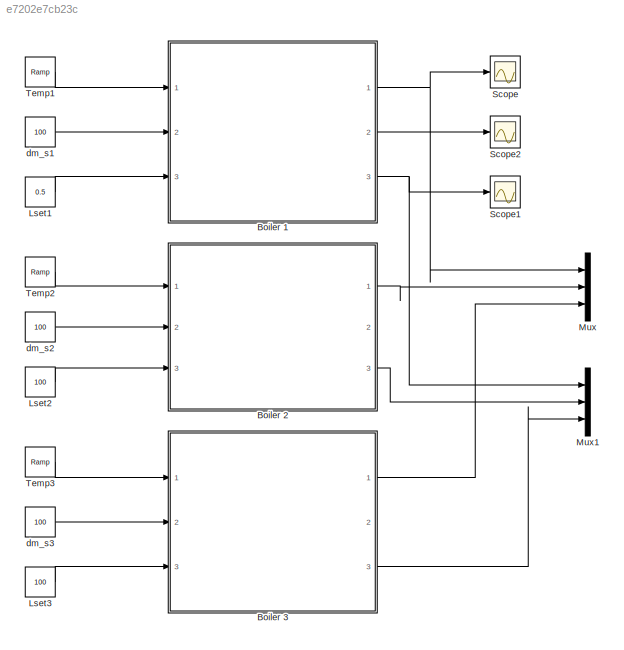
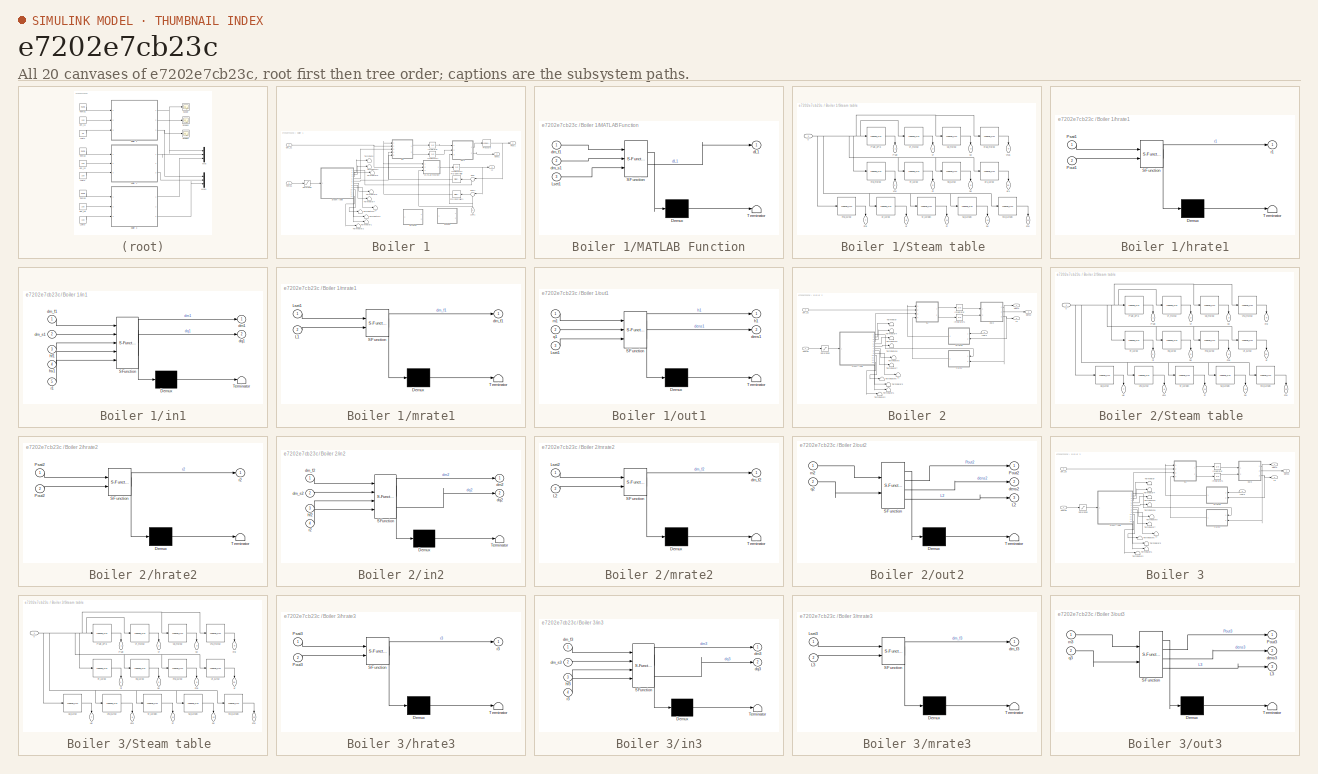
[diagram: thumbnail index - all 20 canvases of the model, root first then tree order]
MODEL slx_e7202e7cb23c
KIND model
CONFIG AbsTol = auto
CONFIG EnableMultiTasking = off
CONFIG FixedStep = 0.01
CONFIG MaxStep = auto
CONFIG MinStep = auto
CONFIG RelTol = 1e-3
CONFIG SampleTimeConstraint = Unconstrained
CONFIG SolverName = ode1
CONFIG StartTime = 0.0
CONFIG StopTime = 75
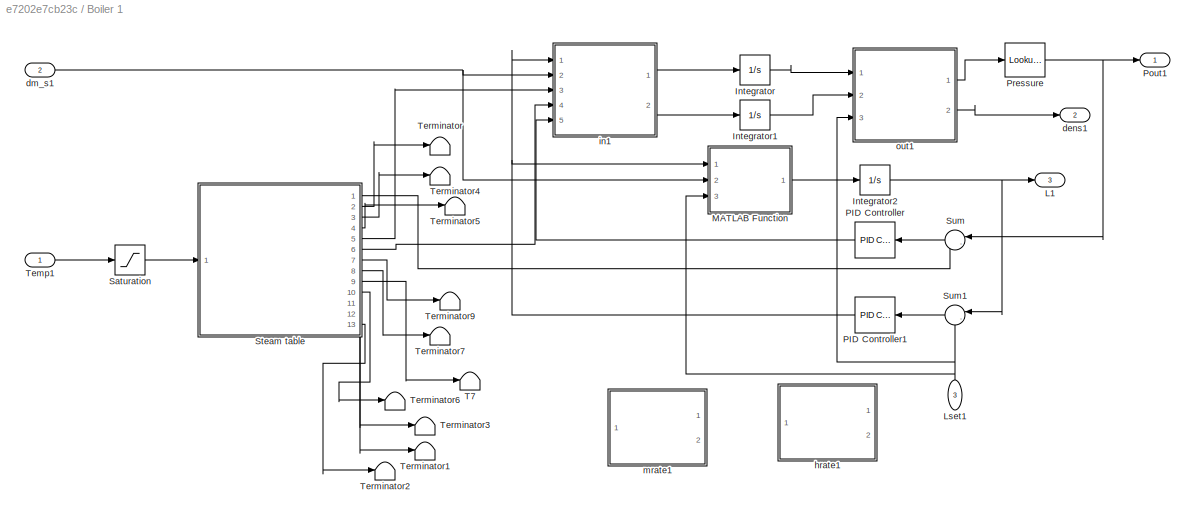
BLOCK [SubSystem] Boiler 1
  Ports = [3, 3]
  RequestExecContextInheritance = off
BLOCK [Integrator] Boiler 1/Integrator
  Ports = [1, 1]
BLOCK [Integrator] Boiler 1/Integrator1
  InitialCondition = 1
  Ports = [1, 1]
BLOCK [Integrator] Boiler 1/Integrator2
  Ports = [1, 1]
BLOCK [Outport] Boiler 1/L1
  Port = 3
BLOCK [Inport] Boiler 1/Lset1
  NameLocation = left
  Port = 3
BLOCK [SubSystem] Boiler 1/MATLAB Function
  ErrorFcn = Stateflow.Translate.translate
  PermitHierarchicalResolution = ExplicitOnly
  Ports = [3, 1]
  RequestExecContextInheritance = off
  SFBlockType = MATLAB Function
  TreatAsAtomicUnit = on
BLOCK [Demux] Boiler 1/MATLAB Function/ Demux 
  Outputs = 1
  Ports = [1, 1]
BLOCK [S-Function] Boiler 1/MATLAB Function/ SFunction 
  EnableBusSupport = on
  FunctionName = sf_sfun
  PortCounts = [3 2]
  Ports = [3, 2]
  SFcnIsStateOwnerBlock = off
  SFunctionDeploymentMode = off
  Tag = Stateflow S-Function 13
BLOCK [Terminator] Boiler 1/MATLAB Function/ Terminator 
BLOCK [Inport] Boiler 1/MATLAB Function/Lset1
  Port = 3
BLOCK [Outport] Boiler 1/MATLAB Function/dL1
BLOCK [Inport] Boiler 1/MATLAB Function/dm_f1
BLOCK [Inport] Boiler 1/MATLAB Function/dm_s1
  Port = 2
BLOCK [Reference] Boiler 1/PID Controller  REF=slpidlib/PID Controller
  Ports = [1, 1]
  SourceBlock = slpidlib/PID Controller
  SourceProductBaseCode = SL
  SourceType = PID 1dof
BLOCK [Reference] Boiler 1/PID Controller1  REF=slpidlib/PID Controller
  Ports = [1, 1]
  SourceBlock = slpidlib/PID Controller
  SourceProductBaseCode = SL
  SourceType = PID 1dof
BLOCK [Outport] Boiler 1/Pout1
BLOCK [Lookup_n-D] Boiler 1/Pressure
  BreakpointsForDimension1 = hfg_kJ_kg_flip
  InputPortMap = u0
  InternalRulePriority = Speed
  NumberOfTableDimensions = 1
  Ports = [1, 1]
  RndMeth = Simplest
  Table = Psat_kPa_flip
BLOCK [Saturate] Boiler 1/Saturation
  LowerLimit = 0
  UpperLimit = 50
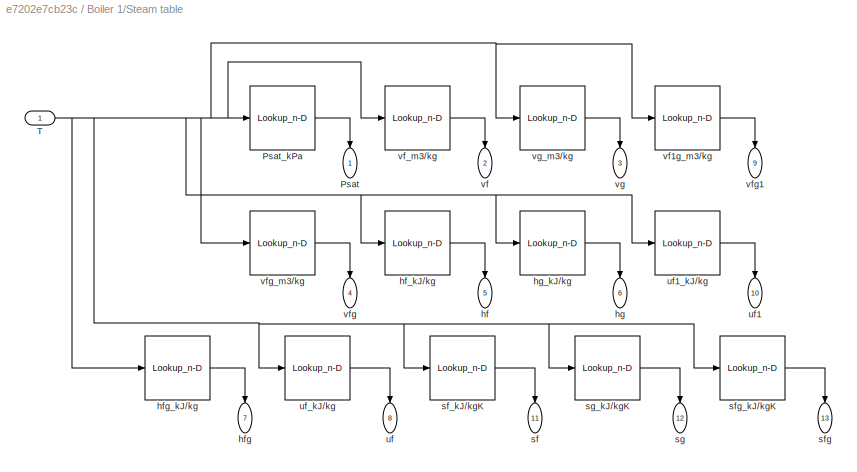
BLOCK [SubSystem] Boiler 1/Steam table 
  Ports = [1, 13]
  RequestExecContextInheritance = off
BLOCK [Outport] Boiler 1/Steam table /Psat
  NameLocation = left
BLOCK [Lookup_n-D] Boiler 1/Steam table /Psat_kPa
  BreakpointsForDimension1 = T_C_
  InputPortMap = u0
  InternalRulePriority = Speed
  NumberOfTableDimensions = 1
  Ports = [1, 1]
  RndMeth = Simplest
  Table = Psat_kPa_
BLOCK [Inport] Boiler 1/Steam table /T
BLOCK [Outport] Boiler 1/Steam table /hf
  NameLocation = left
  Port = 5
BLOCK [Lookup_n-D] Boiler 1/Steam table /hf_kJ//kg
  BreakpointsForDimension1 = T_C_
  InputPortMap = u0
  InternalRulePriority = Speed
  NumberOfTableDimensions = 1
  Ports = [1, 1]
  RndMeth = Simplest
  Table = hg_kJ_kg_
BLOCK [Outport] Boiler 1/Steam table /hfg
  NameLocation = left
  Port = 7
BLOCK [Lookup_n-D] Boiler 1/Steam table /hfg_kJ//kg
  BreakpointsForDimension1 = T_C_
  InputPortMap = u0
  InternalRulePriority = Speed
  NumberOfTableDimensions = 1
  Ports = [1, 1]
  RndMeth = Simplest
  Table = hfg_kJ_kg_
BLOCK [Outport] Boiler 1/Steam table /hg
  NameLocation = left
  Port = 6
BLOCK [Lookup_n-D] Boiler 1/Steam table /hg_kJ//kg
  BreakpointsForDimension1 = T_C_
  InputPortMap = u0
  InternalRulePriority = Speed
  NumberOfTableDimensions = 1
  Ports = [1, 1]
  RndMeth = Simplest
  Table = hfg_kJ_kg_
BLOCK [Outport] Boiler 1/Steam table /sf
  NameLocation = left
  Port = 11
BLOCK [Lookup_n-D] Boiler 1/Steam table /sf_kJ//kgK
  BreakpointsForDimension1 = T_C_
  InputPortMap = u0
  InternalRulePriority = Speed
  NumberOfTableDimensions = 1
  Ports = [1, 1]
  RndMeth = Simplest
  Table = sf_kJ_kg_
BLOCK [Outport] Boiler 1/Steam table /sfg
  NameLocation = left
  Port = 13
BLOCK [Lookup_n-D] Boiler 1/Steam table /sfg_kJ//kgK
  BreakpointsForDimension1 = T_C_
  InputPortMap = u0
  InternalRulePriority = Speed
  NumberOfTableDimensions = 1
  Ports = [1, 1]
  RndMeth = Simplest
  Table = sfg_kJ_kg_
BLOCK [Outport] Boiler 1/Steam table /sg
  NameLocation = left
  Port = 12
BLOCK [Lookup_n-D] Boiler 1/Steam table /sg_kJ//kgK
  BreakpointsForDimension1 = T_C_
  InputPortMap = u0
  InternalRulePriority = Speed
  NumberOfTableDimensions = 1
  Ports = [1, 1]
  RndMeth = Simplest
  Table = sg_kJ_kg_
BLOCK [Outport] Boiler 1/Steam table /uf
  NameLocation = left
  Port = 8
BLOCK [Outport] Boiler 1/Steam table /uf1
  NameLocation = left
  Port = 10
BLOCK [Lookup_n-D] Boiler 1/Steam table /uf1_kJ//kg
  BreakpointsForDimension1 = T_C_
  InputPortMap = u0
  InternalRulePriority = Speed
  NumberOfTableDimensions = 1
  Ports = [1, 1]
  RndMeth = Simplest
  Table = ufg_kJ_kg_
BLOCK [Lookup_n-D] Boiler 1/Steam table /uf_kJ//kg
  BreakpointsForDimension1 = T_C_
  InputPortMap = u0
  InternalRulePriority = Speed
  NumberOfTableDimensions = 1
  Ports = [1, 1]
  RndMeth = Simplest
  Table = uf_kJ_kg_
BLOCK [Outport] Boiler 1/Steam table /vf
  NameLocation = left
  Port = 2
BLOCK [Lookup_n-D] Boiler 1/Steam table /vf1g_m3//kg
  BreakpointsForDimension1 = T_C_
  InputPortMap = u0
  InternalRulePriority = Speed
  NumberOfTableDimensions = 1
  Ports = [1, 1]
  RndMeth = Simplest
  Table = ug_kJ_kg_
BLOCK [Lookup_n-D] Boiler 1/Steam table /vf_m3//kg
  BreakpointsForDimension1 = T_C_
  InputPortMap = u0
  InternalRulePriority = Speed
  NumberOfTableDimensions = 1
  Ports = [1, 1]
  RndMeth = Simplest
  Table = vf_m3_kg_
BLOCK [Outport] Boiler 1/Steam table /vfg
  NameLocation = left
  Port = 4
BLOCK [Outport] Boiler 1/Steam table /vfg1
  NameLocation = left
  Port = 9
BLOCK [Lookup_n-D] Boiler 1/Steam table /vfg_m3//kg
  BreakpointsForDimension1 = T_C_
  InputPortMap = u0
  InternalRulePriority = Speed
  NumberOfTableDimensions = 1
  Ports = [1, 1]
  RndMeth = Simplest
  Table = vfg_m3_kg_
BLOCK [Outport] Boiler 1/Steam table /vg
  NameLocation = left
  Port = 3
BLOCK [Lookup_n-D] Boiler 1/Steam table /vg_m3//kg
  BreakpointsForDimension1 = T_C_
  InputPortMap = u0
  InternalRulePriority = Speed
  NumberOfTableDimensions = 1
  Ports = [1, 1]
  RndMeth = Simplest
  Table = vg_m3_kg_
BLOCK [Sum] Boiler 1/Sum
  Inputs = |-+
  Ports = [2, 1]
BLOCK [Sum] Boiler 1/Sum1
  Inputs = |-+
  Ports = [2, 1]
BLOCK [Terminator] Boiler 1/T7
BLOCK [Inport] Boiler 1/Temp1
BLOCK [Terminator] Boiler 1/Terminator
BLOCK [Terminator] Boiler 1/Terminator1
BLOCK [Terminator] Boiler 1/Terminator2
BLOCK [Terminator] Boiler 1/Terminator3
BLOCK [Terminator] Boiler 1/Terminator4
BLOCK [Terminator] Boiler 1/Terminator5
BLOCK [Terminator] Boiler 1/Terminator6
BLOCK [Terminator] Boiler 1/Terminator7
BLOCK [Terminator] Boiler 1/Terminator9
BLOCK [Outport] Boiler 1/dens1
  Port = 2
BLOCK [Inport] Boiler 1/dm_s1
  Port = 2
BLOCK [SubSystem] Boiler 1/hrate1
  Commented = on
  ErrorFcn = Stateflow.Translate.translate
  PermitHierarchicalResolution = ExplicitOnly
  Ports = [2, 1]
  RequestExecContextInheritance = off
  SFBlockType = MATLAB Function
  TreatAsAtomicUnit = on
BLOCK [Demux] Boiler 1/hrate1/ Demux 
  Outputs = 1
  Ports = [1, 1]
BLOCK [S-Function] Boiler 1/hrate1/ SFunction 
  EnableBusSupport = on
  FunctionName = sf_sfun
  PortCounts = [2 2]
  Ports = [2, 2]
  SFcnIsStateOwnerBlock = off
  SFunctionDeploymentMode = off
  Tag = Stateflow S-Function 3
BLOCK [Terminator] Boiler 1/hrate1/ Terminator 
BLOCK [Inport] Boiler 1/hrate1/Pout1
  Port = 2
BLOCK [Inport] Boiler 1/hrate1/Psat1
BLOCK [Outport] Boiler 1/hrate1/r1
BLOCK [SubSystem] Boiler 1/in1
  ErrorFcn = Stateflow.Translate.translate
  PermitHierarchicalResolution = ExplicitOnly
  Ports = [5, 2]
  RequestExecContextInheritance = off
  SFBlockType = MATLAB Function
  TreatAsAtomicUnit = on
BLOCK [Demux] Boiler 1/in1/ Demux 
  Outputs = 1
  Ports = [1, 1]
BLOCK [S-Function] Boiler 1/in1/ SFunction 
  EnableBusSupport = on
  FunctionName = sf_sfun
  PortCounts = [5 3]
  Ports = [5, 3]
  SFcnIsStateOwnerBlock = off
  SFunctionDeploymentMode = off
  Tag = Stateflow S-Function 2
BLOCK [Terminator] Boiler 1/in1/ Terminator 
BLOCK [Outport] Boiler 1/in1/dm1
BLOCK [Inport] Boiler 1/in1/dm_f1
BLOCK [Inport] Boiler 1/in1/dm_s1
  Port = 2
BLOCK [Outport] Boiler 1/in1/dq1
  Port = 2
BLOCK [Inport] Boiler 1/in1/hf1
  Port = 3
BLOCK [Inport] Boiler 1/in1/hs1
  Port = 4
BLOCK [Inport] Boiler 1/in1/r1
  Port = 5
BLOCK [SubSystem] Boiler 1/mrate1
  Commented = on
  ErrorFcn = Stateflow.Translate.translate
  PermitHierarchicalResolution = ExplicitOnly
  Ports = [2, 1]
  RequestExecContextInheritance = off
  SFBlockType = MATLAB Function
  TreatAsAtomicUnit = on
BLOCK [Demux] Boiler 1/mrate1/ Demux 
  Outputs = 1
  Ports = [1, 1]
BLOCK [S-Function] Boiler 1/mrate1/ SFunction 
  EnableBusSupport = on
  FunctionName = sf_sfun
  PortCounts = [2 2]
  Ports = [2, 2]
  SFcnIsStateOwnerBlock = off
  SFunctionDeploymentMode = off
  Tag = Stateflow S-Function 4
BLOCK [Terminator] Boiler 1/mrate1/ Terminator 
BLOCK [Inport] Boiler 1/mrate1/L1
  Port = 2
BLOCK [Inport] Boiler 1/mrate1/Lset1
BLOCK [Outport] Boiler 1/mrate1/dm_f1
BLOCK [SubSystem] Boiler 1/out1
  ErrorFcn = Stateflow.Translate.translate
  PermitHierarchicalResolution = ExplicitOnly
  Ports = [3, 2]
  RequestExecContextInheritance = off
  SFBlockType = MATLAB Function
  TreatAsAtomicUnit = on
BLOCK [Demux] Boiler 1/out1/ Demux 
  Outputs = 1
  Ports = [1, 1]
BLOCK [S-Function] Boiler 1/out1/ SFunction 
  EnableBusSupport = on
  FunctionName = sf_sfun
  PortCounts = [3 3]
  Ports = [3, 3]
  SFcnIsStateOwnerBlock = off
  SFunctionDeploymentMode = off
  Tag = Stateflow S-Function 1
BLOCK [Terminator] Boiler 1/out1/ Terminator 
BLOCK [Inport] Boiler 1/out1/Lset1
  Port = 3
BLOCK [Outport] Boiler 1/out1/dens1
  Port = 2
BLOCK [Outport] Boiler 1/out1/h1
BLOCK [Inport] Boiler 1/out1/m1
BLOCK [Inport] Boiler 1/out1/q1
  Port = 2
BLOCK [SubSystem] Boiler 2
  Commented = on
  Ports = [3, 3]
  RequestExecContextInheritance = off
BLOCK [Integrator] Boiler 2/Integrator
  Ports = [1, 1]
BLOCK [Integrator] Boiler 2/Integrator1
  Ports = [1, 1]
BLOCK [Outport] Boiler 2/L2
  Port = 3
BLOCK [Inport] Boiler 2/Lset2
  Port = 3
BLOCK [Outport] Boiler 2/Pout2
BLOCK [Saturate] Boiler 2/Saturation
  LowerLimit = 0
  UpperLimit = 50
BLOCK [SubSystem] Boiler 2/Steam table 
  Ports = [1, 13]
  RequestExecContextInheritance = off
BLOCK [Outport] Boiler 2/Steam table /Psat
  NameLocation = left
BLOCK [Lookup_n-D] Boiler 2/Steam table /Psat_kPa
  BreakpointsForDimension1 = T_C_
  InputPortMap = u0
  InternalRulePriority = Speed
  NumberOfTableDimensions = 1
  Ports = [1, 1]
  RndMeth = Simplest
  Table = Psat_kPa_
BLOCK [Inport] Boiler 2/Steam table /T
BLOCK [Outport] Boiler 2/Steam table /hf
  NameLocation = left
  Port = 4
BLOCK [Lookup_n-D] Boiler 2/Steam table /hf_kJ//kg
  BreakpointsForDimension1 = T_C_
  InputPortMap = u0
  InternalRulePriority = Speed
  NumberOfTableDimensions = 1
  Ports = [1, 1]
  RndMeth = Simplest
  Table = vfg_m3_kg_
BLOCK [Outport] Boiler 2/Steam table /hfg
  NameLocation = left
  Port = 6
BLOCK [Lookup_n-D] Boiler 2/Steam table /hfg_kJ//kg
  BreakpointsForDimension1 = T_C_
  InputPortMap = u0
  InternalRulePriority = Speed
  NumberOfTableDimensions = 1
  Ports = [1, 1]
  RndMeth = Simplest
  Table = hg_kJ_kg_
BLOCK [Outport] Boiler 2/Steam table /hg
  NameLocation = left
  Port = 5
BLOCK [Lookup_n-D] Boiler 2/Steam table /hg_kJ//kg
  BreakpointsForDimension1 = T_C_
  InputPortMap = u0
  InternalRulePriority = Speed
  NumberOfTableDimensions = 1
  Ports = [1, 1]
  RndMeth = Simplest
  Table = hf_kJ_kg_
BLOCK [Outport] Boiler 2/Steam table /sf
  NameLocation = left
  Port = 11
BLOCK [Lookup_n-D] Boiler 2/Steam table /sf_kJ//kgK
  BreakpointsForDimension1 = T_C_
  InputPortMap = u0
  InternalRulePriority = Speed
  NumberOfTableDimensions = 1
  Ports = [1, 1]
  RndMeth = Simplest
  Table = sf_kJ_kg_
BLOCK [Outport] Boiler 2/Steam table /sfg
  NameLocation = left
  Port = 13
BLOCK [Lookup_n-D] Boiler 2/Steam table /sfg_kJ//kgK
  BreakpointsForDimension1 = T_C_
  InputPortMap = u0
  InternalRulePriority = Speed
  NumberOfTableDimensions = 1
  Ports = [1, 1]
  RndMeth = Simplest
  Table = sfg_kJ_kg_
BLOCK [Outport] Boiler 2/Steam table /sg
  NameLocation = left
  Port = 12
BLOCK [Lookup_n-D] Boiler 2/Steam table /sg_kJ//kgK
  BreakpointsForDimension1 = T_C_
  InputPortMap = u0
  InternalRulePriority = Speed
  NumberOfTableDimensions = 1
  Ports = [1, 1]
  RndMeth = Simplest
  Table = sg_kJ_kg_
BLOCK [Outport] Boiler 2/Steam table /uf
  NameLocation = left
  Port = 10
BLOCK [Lookup_n-D] Boiler 2/Steam table /uf_kJ//kg
  BreakpointsForDimension1 = T_C_
  InputPortMap = u0
  InternalRulePriority = Speed
  NumberOfTableDimensions = 1
  Ports = [1, 1]
  RndMeth = Simplest
  Table = ufg_kJ_kg_
BLOCK [Outport] Boiler 2/Steam table /ufg
  NameLocation = left
  Port = 8
BLOCK [Lookup_n-D] Boiler 2/Steam table /ufg_kJ//kg
  BreakpointsForDimension1 = T_C_
  InputPortMap = u0
  InternalRulePriority = Speed
  NumberOfTableDimensions = 1
  Ports = [1, 1]
  RndMeth = Simplest
  Table = uf_kJ_kg_
BLOCK [Outport] Boiler 2/Steam table /ug
  NameLocation = left
  Port = 7
BLOCK [Lookup_n-D] Boiler 2/Steam table /ug_kJ//kg
  BreakpointsForDimension1 = T_C_
  InputPortMap = u0
  InternalRulePriority = Speed
  NumberOfTableDimensions = 1
  Ports = [1, 1]
  RndMeth = Simplest
  Table = hfg_kJ_kg_
BLOCK [Outport] Boiler 2/Steam table /vf
  NameLocation = left
  Port = 2
BLOCK [Lookup_n-D] Boiler 2/Steam table /vf_m3//kg
  BreakpointsForDimension1 = T_C_
  InputPortMap = u0
  InternalRulePriority = Speed
  NumberOfTableDimensions = 1
  Ports = [1, 1]
  RndMeth = Simplest
  Table = vf_m3_kg_
BLOCK [Outport] Boiler 2/Steam table /vfg
  NameLocation = left
  Port = 9
BLOCK [Lookup_n-D] Boiler 2/Steam table /vfg_m3//kg
  BreakpointsForDimension1 = T_C_
  InputPortMap = u0
  InternalRulePriority = Speed
  NumberOfTableDimensions = 1
  Ports = [1, 1]
  RndMeth = Simplest
  Table = ug_kJ_kg_
BLOCK [Outport] Boiler 2/Steam table /vg
  NameLocation = left
  Port = 3
BLOCK [Lookup_n-D] Boiler 2/Steam table /vg_m3//kg
  BreakpointsForDimension1 = T_C_
  InputPortMap = u0
  InternalRulePriority = Speed
  NumberOfTableDimensions = 1
  Ports = [1, 1]
  RndMeth = Simplest
  Table = vg_m3_kg_
BLOCK [Terminator] Boiler 2/T7
BLOCK [Inport] Boiler 2/Temp2
BLOCK [Terminator] Boiler 2/Terminator
BLOCK [Terminator] Boiler 2/Terminator1
BLOCK [Terminator] Boiler 2/Terminator2
BLOCK [Terminator] Boiler 2/Terminator3
BLOCK [Terminator] Boiler 2/Terminator4
BLOCK [Terminator] Boiler 2/Terminator5
BLOCK [Terminator] Boiler 2/Terminator6
BLOCK [Terminator] Boiler 2/Terminator7
BLOCK [Terminator] Boiler 2/Terminator8
BLOCK [Terminator] Boiler 2/Terminator9
BLOCK [Outport] Boiler 2/dens2
  Port = 2
BLOCK [Inport] Boiler 2/dm_s2
  Port = 2
BLOCK [SubSystem] Boiler 2/hrate2
  ErrorFcn = Stateflow.Translate.translate
  PermitHierarchicalResolution = ExplicitOnly
  Ports = [2, 1]
  RequestExecContextInheritance = off
  SFBlockType = MATLAB Function
  TreatAsAtomicUnit = on
BLOCK [Demux] Boiler 2/hrate2/ Demux 
  Outputs = 1
  Ports = [1, 1]
BLOCK [S-Function] Boiler 2/hrate2/ SFunction 
  EnableBusSupport = on
  FunctionName = sf_sfun
  PortCounts = [2 2]
  Ports = [2, 2]
  SFcnIsStateOwnerBlock = off
  SFunctionDeploymentMode = off
  Tag = Stateflow S-Function 5
BLOCK [Terminator] Boiler 2/hrate2/ Terminator 
BLOCK [Inport] Boiler 2/hrate2/Pout2
  Port = 2
BLOCK [Inport] Boiler 2/hrate2/Psat2
BLOCK [Outport] Boiler 2/hrate2/r2
BLOCK [SubSystem] Boiler 2/in2
  ErrorFcn = Stateflow.Translate.translate
  PermitHierarchicalResolution = ExplicitOnly
  Ports = [4, 2]
  RequestExecContextInheritance = off
  SFBlockType = MATLAB Function
  TreatAsAtomicUnit = on
BLOCK [Demux] Boiler 2/in2/ Demux 
  Outputs = 1
  Ports = [1, 1]
BLOCK [S-Function] Boiler 2/in2/ SFunction 
  EnableBusSupport = on
  FunctionName = sf_sfun
  PortCounts = [4 3]
  Ports = [4, 3]
  SFcnIsStateOwnerBlock = off
  SFunctionDeploymentMode = off
  Tag = Stateflow S-Function 6
BLOCK [Terminator] Boiler 2/in2/ Terminator 
BLOCK [Outport] Boiler 2/in2/dm2
BLOCK [Inport] Boiler 2/in2/dm_f2
BLOCK [Inport] Boiler 2/in2/dm_s2
  Port = 2
BLOCK [Outport] Boiler 2/in2/dq2
  Port = 2
BLOCK [Inport] Boiler 2/in2/hf2
  Port = 3
BLOCK [Inport] Boiler 2/in2/r2
  Port = 4
BLOCK [SubSystem] Boiler 2/mrate2
  ErrorFcn = Stateflow.Translate.translate
  PermitHierarchicalResolution = ExplicitOnly
  Ports = [2, 1]
  RequestExecContextInheritance = off
  SFBlockType = MATLAB Function
  TreatAsAtomicUnit = on
BLOCK [Demux] Boiler 2/mrate2/ Demux 
  Outputs = 1
  Ports = [1, 1]
BLOCK [S-Function] Boiler 2/mrate2/ SFunction 
  EnableBusSupport = on
  FunctionName = sf_sfun
  PortCounts = [2 2]
  Ports = [2, 2]
  SFcnIsStateOwnerBlock = off
  SFunctionDeploymentMode = off
  Tag = Stateflow S-Function 7
BLOCK [Terminator] Boiler 2/mrate2/ Terminator 
BLOCK [Inport] Boiler 2/mrate2/L2
  Port = 2
BLOCK [Inport] Boiler 2/mrate2/Lset2
BLOCK [Outport] Boiler 2/mrate2/dm_f2
BLOCK [SubSystem] Boiler 2/out2
  ErrorFcn = Stateflow.Translate.translate
  PermitHierarchicalResolution = ExplicitOnly
  Ports = [2, 3]
  RequestExecContextInheritance = off
  SFBlockType = MATLAB Function
  TreatAsAtomicUnit = on
BLOCK [Demux] Boiler 2/out2/ Demux 
  Outputs = 1
  Ports = [1, 1]
BLOCK [S-Function] Boiler 2/out2/ SFunction 
  EnableBusSupport = on
  FunctionName = sf_sfun
  PortCounts = [2 4]
  Ports = [2, 4]
  SFcnIsStateOwnerBlock = off
  SFunctionDeploymentMode = off
  Tag = Stateflow S-Function 8
BLOCK [Terminator] Boiler 2/out2/ Terminator 
BLOCK [Outport] Boiler 2/out2/L2
  Port = 3
BLOCK [Outport] Boiler 2/out2/Pout2
BLOCK [Outport] Boiler 2/out2/dens2
  Port = 2
BLOCK [Inport] Boiler 2/out2/m2
BLOCK [Inport] Boiler 2/out2/q2
  Port = 2
BLOCK [SubSystem] Boiler 3
  Commented = on
  Ports = [3, 3]
  RequestExecContextInheritance = off
BLOCK [Integrator] Boiler 3/Integrator
  Ports = [1, 1]
BLOCK [Integrator] Boiler 3/Integrator1
  Ports = [1, 1]
BLOCK [Outport] Boiler 3/L3
  Port = 3
BLOCK [Inport] Boiler 3/Lset3
  Port = 3
BLOCK [Outport] Boiler 3/Pout3
BLOCK [Saturate] Boiler 3/Saturation
  LowerLimit = 0
  UpperLimit = 50
BLOCK [SubSystem] Boiler 3/Steam table 
  Ports = [1, 13]
  RequestExecContextInheritance = off
BLOCK [Outport] Boiler 3/Steam table /Psat
  NameLocation = left
BLOCK [Lookup_n-D] Boiler 3/Steam table /Psat_kPa
  BreakpointsForDimension1 = T_C_
  InputPortMap = u0
  InternalRulePriority = Speed
  NumberOfTableDimensions = 1
  Ports = [1, 1]
  RndMeth = Simplest
  Table = Psat_kPa_
BLOCK [Inport] Boiler 3/Steam table /T
BLOCK [Outport] Boiler 3/Steam table /hf
  NameLocation = left
  Port = 4
BLOCK [Lookup_n-D] Boiler 3/Steam table /hf_kJ//kg
  BreakpointsForDimension1 = T_C_
  InputPortMap = u0
  InternalRulePriority = Speed
  NumberOfTableDimensions = 1
  Ports = [1, 1]
  RndMeth = Simplest
  Table = vfg_m3_kg_
BLOCK [Outport] Boiler 3/Steam table /hfg
  NameLocation = left
  Port = 6
BLOCK [Lookup_n-D] Boiler 3/Steam table /hfg_kJ//kg
  BreakpointsForDimension1 = T_C_
  InputPortMap = u0
  InternalRulePriority = Speed
  NumberOfTableDimensions = 1
  Ports = [1, 1]
  RndMeth = Simplest
  Table = hg_kJ_kg_
BLOCK [Outport] Boiler 3/Steam table /hg
  NameLocation = left
  Port = 5
BLOCK [Lookup_n-D] Boiler 3/Steam table /hg_kJ//kg
  BreakpointsForDimension1 = T_C_
  InputPortMap = u0
  InternalRulePriority = Speed
  NumberOfTableDimensions = 1
  Ports = [1, 1]
  RndMeth = Simplest
  Table = hf_kJ_kg_
BLOCK [Outport] Boiler 3/Steam table /sf
  NameLocation = left
  Port = 11
BLOCK [Lookup_n-D] Boiler 3/Steam table /sf_kJ//kgK
  BreakpointsForDimension1 = T_C_
  InputPortMap = u0
  InternalRulePriority = Speed
  NumberOfTableDimensions = 1
  Ports = [1, 1]
  RndMeth = Simplest
  Table = sf_kJ_kg_
BLOCK [Outport] Boiler 3/Steam table /sfg
  NameLocation = left
  Port = 13
BLOCK [Lookup_n-D] Boiler 3/Steam table /sfg_kJ//kgK
  BreakpointsForDimension1 = T_C_
  InputPortMap = u0
  InternalRulePriority = Speed
  NumberOfTableDimensions = 1
  Ports = [1, 1]
  RndMeth = Simplest
  Table = sfg_kJ_kg_
BLOCK [Outport] Boiler 3/Steam table /sg
  NameLocation = left
  Port = 12
BLOCK [Lookup_n-D] Boiler 3/Steam table /sg_kJ//kgK
  BreakpointsForDimension1 = T_C_
  InputPortMap = u0
  InternalRulePriority = Speed
  NumberOfTableDimensions = 1
  Ports = [1, 1]
  RndMeth = Simplest
  Table = sg_kJ_kg_
BLOCK [Outport] Boiler 3/Steam table /uf
  NameLocation = left
  Port = 10
BLOCK [Lookup_n-D] Boiler 3/Steam table /uf_kJ//kg
  BreakpointsForDimension1 = T_C_
  InputPortMap = u0
  InternalRulePriority = Speed
  NumberOfTableDimensions = 1
  Ports = [1, 1]
  RndMeth = Simplest
  Table = ufg_kJ_kg_
BLOCK [Outport] Boiler 3/Steam table /ufg
  NameLocation = left
  Port = 8
BLOCK [Lookup_n-D] Boiler 3/Steam table /ufg_kJ//kg
  BreakpointsForDimension1 = T_C_
  InputPortMap = u0
  InternalRulePriority = Speed
  NumberOfTableDimensions = 1
  Ports = [1, 1]
  RndMeth = Simplest
  Table = uf_kJ_kg_
BLOCK [Outport] Boiler 3/Steam table /ug
  NameLocation = left
  Port = 7
BLOCK [Lookup_n-D] Boiler 3/Steam table /ug_kJ//kg
  BreakpointsForDimension1 = T_C_
  InputPortMap = u0
  InternalRulePriority = Speed
  NumberOfTableDimensions = 1
  Ports = [1, 1]
  RndMeth = Simplest
  Table = hfg_kJ_kg_
BLOCK [Outport] Boiler 3/Steam table /vf
  NameLocation = left
  Port = 2
BLOCK [Lookup_n-D] Boiler 3/Steam table /vf_m3//kg
  BreakpointsForDimension1 = T_C_
  InputPortMap = u0
  InternalRulePriority = Speed
  NumberOfTableDimensions = 1
  Ports = [1, 1]
  RndMeth = Simplest
  Table = vf_m3_kg_
BLOCK [Outport] Boiler 3/Steam table /vfg
  NameLocation = left
  Port = 9
BLOCK [Lookup_n-D] Boiler 3/Steam table /vfg_m3//kg
  BreakpointsForDimension1 = T_C_
  InputPortMap = u0
  InternalRulePriority = Speed
  NumberOfTableDimensions = 1
  Ports = [1, 1]
  RndMeth = Simplest
  Table = ug_kJ_kg_
BLOCK [Outport] Boiler 3/Steam table /vg
  NameLocation = left
  Port = 3
BLOCK [Lookup_n-D] Boiler 3/Steam table /vg_m3//kg
  BreakpointsForDimension1 = T_C_
  InputPortMap = u0
  InternalRulePriority = Speed
  NumberOfTableDimensions = 1
  Ports = [1, 1]
  RndMeth = Simplest
  Table = vg_m3_kg_
BLOCK [Terminator] Boiler 3/T7
BLOCK [Inport] Boiler 3/Temp3
BLOCK [Terminator] Boiler 3/Terminator
BLOCK [Terminator] Boiler 3/Terminator1
BLOCK [Terminator] Boiler 3/Terminator2
BLOCK [Terminator] Boiler 3/Terminator3
BLOCK [Terminator] Boiler 3/Terminator4
BLOCK [Terminator] Boiler 3/Terminator5
BLOCK [Terminator] Boiler 3/Terminator6
BLOCK [Terminator] Boiler 3/Terminator7
BLOCK [Terminator] Boiler 3/Terminator8
BLOCK [Terminator] Boiler 3/Terminator9
BLOCK [Outport] Boiler 3/dens3
  Port = 2
BLOCK [Inport] Boiler 3/dm_s3
  Port = 2
BLOCK [SubSystem] Boiler 3/hrate3
  ErrorFcn = Stateflow.Translate.translate
  PermitHierarchicalResolution = ExplicitOnly
  Ports = [2, 1]
  RequestExecContextInheritance = off
  SFBlockType = MATLAB Function
  TreatAsAtomicUnit = on
BLOCK [Demux] Boiler 3/hrate3/ Demux 
  Outputs = 1
  Ports = [1, 1]
BLOCK [S-Function] Boiler 3/hrate3/ SFunction 
  EnableBusSupport = on
  FunctionName = sf_sfun
  PortCounts = [2 2]
  Ports = [2, 2]
  SFcnIsStateOwnerBlock = off
  SFunctionDeploymentMode = off
  Tag = Stateflow S-Function 9
BLOCK [Terminator] Boiler 3/hrate3/ Terminator 
BLOCK [Inport] Boiler 3/hrate3/Pout3
  Port = 2
BLOCK [Inport] Boiler 3/hrate3/Psat3
BLOCK [Outport] Boiler 3/hrate3/r3
BLOCK [SubSystem] Boiler 3/in3
  ErrorFcn = Stateflow.Translate.translate
  PermitHierarchicalResolution = ExplicitOnly
  Ports = [4, 2]
  RequestExecContextInheritance = off
  SFBlockType = MATLAB Function
  TreatAsAtomicUnit = on
BLOCK [Demux] Boiler 3/in3/ Demux 
  Outputs = 1
  Ports = [1, 1]
BLOCK [S-Function] Boiler 3/in3/ SFunction 
  EnableBusSupport = on
  FunctionName = sf_sfun
  PortCounts = [4 3]
  Ports = [4, 3]
  SFcnIsStateOwnerBlock = off
  SFunctionDeploymentMode = off
  Tag = Stateflow S-Function 10
BLOCK [Terminator] Boiler 3/in3/ Terminator 
BLOCK [Outport] Boiler 3/in3/dm3
BLOCK [Inport] Boiler 3/in3/dm_f3
BLOCK [Inport] Boiler 3/in3/dm_s3
  Port = 2
BLOCK [Outport] Boiler 3/in3/dq3
  Port = 2
BLOCK [Inport] Boiler 3/in3/hf3
  Port = 3
BLOCK [Inport] Boiler 3/in3/r3
  Port = 4
BLOCK [SubSystem] Boiler 3/mrate3
  ErrorFcn = Stateflow.Translate.translate
  PermitHierarchicalResolution = ExplicitOnly
  Ports = [2, 1]
  RequestExecContextInheritance = off
  SFBlockType = MATLAB Function
  TreatAsAtomicUnit = on
BLOCK [Demux] Boiler 3/mrate3/ Demux 
  Outputs = 1
  Ports = [1, 1]
BLOCK [S-Function] Boiler 3/mrate3/ SFunction 
  EnableBusSupport = on
  FunctionName = sf_sfun
  PortCounts = [2 2]
  Ports = [2, 2]
  SFcnIsStateOwnerBlock = off
  SFunctionDeploymentMode = off
  Tag = Stateflow S-Function 11
BLOCK [Terminator] Boiler 3/mrate3/ Terminator 
BLOCK [Inport] Boiler 3/mrate3/L3
  Port = 2
BLOCK [Inport] Boiler 3/mrate3/Lset3
BLOCK [Outport] Boiler 3/mrate3/dm_f3
BLOCK [SubSystem] Boiler 3/out3
  ErrorFcn = Stateflow.Translate.translate
  PermitHierarchicalResolution = ExplicitOnly
  Ports = [2, 3]
  RequestExecContextInheritance = off
  SFBlockType = MATLAB Function
  TreatAsAtomicUnit = on
BLOCK [Demux] Boiler 3/out3/ Demux 
  Outputs = 1
  Ports = [1, 1]
BLOCK [S-Function] Boiler 3/out3/ SFunction 
  EnableBusSupport = on
  FunctionName = sf_sfun
  PortCounts = [2 4]
  Ports = [2, 4]
  SFcnIsStateOwnerBlock = off
  SFunctionDeploymentMode = off
  Tag = Stateflow S-Function 12
BLOCK [Terminator] Boiler 3/out3/ Terminator 
BLOCK [Outport] Boiler 3/out3/L3
  Port = 3
BLOCK [Outport] Boiler 3/out3/Pout3
BLOCK [Outport] Boiler 3/out3/dens3
  Port = 2
BLOCK [Inport] Boiler 3/out3/m3
BLOCK [Inport] Boiler 3/out3/q3
  Port = 2
BLOCK [Constant] Lset1
  Value = 0.5
BLOCK [Constant] Lset2
  Commented = on
  Value = 100
BLOCK [Constant] Lset3
  Commented = on
  Value = 100
BLOCK [Mux] Mux
  Commented = on
  DisplayOption = bar
  Inputs = 3
  Ports = [3, 1]
BLOCK [Mux] Mux1
  Commented = on
  DisplayOption = bar
  Inputs = 3
  Ports = [3, 1]
BLOCK [Scope] Scope
  Floating = off
  NumInputPorts = 1
  Ports = [1]
  ScopeSpecificationString = Simulink.scopes.TimeScopeBlockCfg('CurrentConfiguration', extmgr.ConfigurationSet(extmgr.Configuration('Core','General UI',true),extmgr.Configuration('Core','Source UI',true),extmgr.Configuration('Sources','WiredSimulink',true),extmgr.Configuration('Visuals','Time Domain',true),extmgr.Configuration('Tools','Plot Navigation',true),extmgr.Configuration('Tools','Measurements',true,'Version','2021b'))...<+48ch>
BLOCK [Scope] Scope1
  Floating = off
  NumInputPorts = 1
  Ports = [1]
  ScopeSpecificationString = Simulink.scopes.TimeScopeBlockCfg('CurrentConfiguration', extmgr.ConfigurationSet(extmgr.Configuration('Core','General UI',true),extmgr.Configuration('Core','Source UI',true),extmgr.Configuration('Sources','WiredSimulink',true,'DataLoggingVariableName','ScopeData1'),extmgr.Configuration('Visuals','Time Domain',true),extmgr.Configuration('Tools','Plot Navigation',true),extmgr.Configuration('Tools',...<+40ch>
BLOCK [Scope] Scope2
  Floating = off
  NumInputPorts = 1
  Ports = [1]
  ScopeSpecificationString = Simulink.scopes.TimeScopeBlockCfg('CurrentConfiguration', extmgr.ConfigurationSet(extmgr.Configuration('Core','General UI',true),extmgr.Configuration('Core','Source UI',true),extmgr.Configuration('Sources','WiredSimulink',true,'DataLoggingVariableName','ScopeData2'),extmgr.Configuration('Visuals','Time Domain',true),extmgr.Configuration('Tools','Plot Navigation',true),extmgr.Configuration('Tools',...<+40ch>
BLOCK [Reference] Temp1  REF=simulink/Sources/Ramp
  Ports = [0, 1]
  SourceBlock = simulink/Sources/Ramp
  SourceProductBaseCode = SL
  SourceType = Ramp
BLOCK [Reference] Temp2  REF=simulink/Sources/Ramp
  Commented = on
  Ports = [0, 1]
  SourceBlock = simulink/Sources/Ramp
  SourceProductBaseCode = SL
  SourceType = Ramp
BLOCK [Reference] Temp3  REF=simulink/Sources/Ramp
  Commented = on
  Ports = [0, 1]
  SourceBlock = simulink/Sources/Ramp
  SourceProductBaseCode = SL
  SourceType = Ramp
BLOCK [Constant] dm_s1
  Value = 100
BLOCK [Constant] dm_s2
  Commented = on
  Value = 100
BLOCK [Constant] dm_s3
  Commented = on
  Value = 100
LINE Boiler 1/Integrator1:1 -> Boiler 1/out1:2
NET Boiler 1/Integrator2:1 -> Boiler 1/L1:1, Boiler 1/Sum1:1
LINE Boiler 1/Integrator:1 -> Boiler 1/out1:1
NET Boiler 1/Lset1:1 -> Boiler 1/MATLAB Function:3, Boiler 1/Sum1:2, Boiler 1/out1:3
LINE Boiler 1/MATLAB Function:1 -> Boiler 1/Integrator2:1
NET Boiler 1/PID Controller1:1 -> Boiler 1/MATLAB Function:1, Boiler 1/in1:1
LINE Boiler 1/PID Controller:1 -> Boiler 1/in1:5
NET Boiler 1/Pressure:1 -> Boiler 1/Pout1:1, Boiler 1/Sum:1
LINE Boiler 1/Saturation:1 -> Boiler 1/Steam table :1
LINE Boiler 1/Steam table /Psat_kPa:1 -> Boiler 1/Steam table /Psat:1
NET Boiler 1/Steam table /T:1 -> Boiler 1/Steam table /Psat_kPa:1, Boiler 1/Steam table /hf_kJ//kg:1, Boiler 1/Steam table /hfg_kJ//kg:1, Boiler 1/Steam table /hg_kJ//kg:1, Boiler 1/Steam table /sf_kJ//kgK:1, Boiler 1/Steam table /sfg_kJ//kgK:1, Boiler 1/Steam table /sg_kJ//kgK:1, Boiler 1/Steam table /uf1_kJ//kg:1, Boiler 1/Steam table /uf_kJ//kg:1, Boiler 1/Steam table /vf1g_m3//kg:1, Boiler 1/Steam table /vf_m3//kg:1, Boiler 1/Steam table /vfg_m3//kg:1, Boiler 1/Steam table /vg_m3//kg:1
LINE Boiler 1/Steam table /hf_kJ//kg:1 -> Boiler 1/Steam table /hf:1
LINE Boiler 1/Steam table /hfg_kJ//kg:1 -> Boiler 1/Steam table /hfg:1
LINE Boiler 1/Steam table /hg_kJ//kg:1 -> Boiler 1/Steam table /hg:1
LINE Boiler 1/Steam table /sf_kJ//kgK:1 -> Boiler 1/Steam table /sf:1
LINE Boiler 1/Steam table /sfg_kJ//kgK:1 -> Boiler 1/Steam table /sfg:1
LINE Boiler 1/Steam table /sg_kJ//kgK:1 -> Boiler 1/Steam table /sg:1
LINE Boiler 1/Steam table /uf1_kJ//kg:1 -> Boiler 1/Steam table /uf1:1
LINE Boiler 1/Steam table /uf_kJ//kg:1 -> Boiler 1/Steam table /uf:1
LINE Boiler 1/Steam table /vf1g_m3//kg:1 -> Boiler 1/Steam table /vfg1:1
LINE Boiler 1/Steam table /vf_m3//kg:1 -> Boiler 1/Steam table /vf:1
LINE Boiler 1/Steam table /vfg_m3//kg:1 -> Boiler 1/Steam table /vfg:1
LINE Boiler 1/Steam table /vg_m3//kg:1 -> Boiler 1/Steam table /vg:1
LINE Boiler 1/Steam table :1 -> Boiler 1/Sum:2
LINE Boiler 1/Steam table :10 -> Boiler 1/Terminator6:1
LINE Boiler 1/Steam table :11 -> Boiler 1/Terminator3:1
LINE Boiler 1/Steam table :12 -> Boiler 1/Terminator1:1
LINE Boiler 1/Steam table :13 -> Boiler 1/Terminator2:1
LINE Boiler 1/Steam table :2 -> Boiler 1/Terminator:1
LINE Boiler 1/Steam table :3 -> Boiler 1/Terminator4:1
LINE Boiler 1/Steam table :4 -> Boiler 1/Terminator5:1
LINE Boiler 1/Steam table :5 -> Boiler 1/in1:3
LINE Boiler 1/Steam table :6 -> Boiler 1/in1:4
LINE Boiler 1/Steam table :7 -> Boiler 1/Terminator9:1
LINE Boiler 1/Steam table :8 -> Boiler 1/Terminator7:1
LINE Boiler 1/Steam table :9 -> Boiler 1/T7:1
LINE Boiler 1/Sum1:1 -> Boiler 1/PID Controller1:1
LINE Boiler 1/Sum:1 -> Boiler 1/PID Controller:1
LINE Boiler 1/Temp1:1 -> Boiler 1/Saturation:1
NET Boiler 1/dm_s1:1 -> Boiler 1/MATLAB Function:2, Boiler 1/in1:2
LINE Boiler 1/in1:1 -> Boiler 1/Integrator:1
LINE Boiler 1/in1:2 -> Boiler 1/Integrator1:1
LINE Boiler 1/out1:1 -> Boiler 1/Pressure:1
LINE Boiler 1/out1:2 -> Boiler 1/dens1:1
NET Boiler 1:1 -> Mux:1, Scope:1
LINE Boiler 1:2 -> Scope2:1
NET Boiler 1:3 -> Mux1:1, Scope1:1
LINE Boiler 2/Integrator1:1 -> Boiler 2/out2:2
LINE Boiler 2/Integrator:1 -> Boiler 2/out2:1
LINE Boiler 2/Lset2:1 -> Boiler 2/mrate2:1
LINE Boiler 2/Saturation:1 -> Boiler 2/Steam table :1
LINE Boiler 2/Steam table /Psat_kPa:1 -> Boiler 2/Steam table /Psat:1
NET Boiler 2/Steam table /T:1 -> Boiler 2/Steam table /Psat_kPa:1, Boiler 2/Steam table /hf_kJ//kg:1, Boiler 2/Steam table /hfg_kJ//kg:1, Boiler 2/Steam table /hg_kJ//kg:1, Boiler 2/Steam table /sf_kJ//kgK:1, Boiler 2/Steam table /sfg_kJ//kgK:1, Boiler 2/Steam table /sg_kJ//kgK:1, Boiler 2/Steam table /uf_kJ//kg:1, Boiler 2/Steam table /ufg_kJ//kg:1, Boiler 2/Steam table /ug_kJ//kg:1, Boiler 2/Steam table /vf_m3//kg:1, Boiler 2/Steam table /vfg_m3//kg:1, Boiler 2/Steam table /vg_m3//kg:1
LINE Boiler 2/Steam table /hf_kJ//kg:1 -> Boiler 2/Steam table /hf:1
LINE Boiler 2/Steam table /hfg_kJ//kg:1 -> Boiler 2/Steam table /hfg:1
LINE Boiler 2/Steam table /hg_kJ//kg:1 -> Boiler 2/Steam table /hg:1
LINE Boiler 2/Steam table /sf_kJ//kgK:1 -> Boiler 2/Steam table /sf:1
LINE Boiler 2/Steam table /sfg_kJ//kgK:1 -> Boiler 2/Steam table /sfg:1
LINE Boiler 2/Steam table /sg_kJ//kgK:1 -> Boiler 2/Steam table /sg:1
LINE Boiler 2/Steam table /uf_kJ//kg:1 -> Boiler 2/Steam table /uf:1
LINE Boiler 2/Steam table /ufg_kJ//kg:1 -> Boiler 2/Steam table /ufg:1
LINE Boiler 2/Steam table /ug_kJ//kg:1 -> Boiler 2/Steam table /ug:1
LINE Boiler 2/Steam table /vf_m3//kg:1 -> Boiler 2/Steam table /vf:1
LINE Boiler 2/Steam table /vfg_m3//kg:1 -> Boiler 2/Steam table /vfg:1
LINE Boiler 2/Steam table /vg_m3//kg:1 -> Boiler 2/Steam table /vg:1
LINE Boiler 2/Steam table :1 -> Boiler 2/hrate2:1
LINE Boiler 2/Steam table :10 -> Boiler 2/Terminator6:1
LINE Boiler 2/Steam table :11 -> Boiler 2/Terminator3:1
LINE Boiler 2/Steam table :12 -> Boiler 2/Terminator1:1
LINE Boiler 2/Steam table :13 -> Boiler 2/Terminator2:1
LINE Boiler 2/Steam table :2 -> Boiler 2/Terminator:1
LINE Boiler 2/Steam table :3 -> Boiler 2/Terminator4:1
LINE Boiler 2/Steam table :4 -> Boiler 2/in2:3
LINE Boiler 2/Steam table :5 -> Boiler 2/Terminator5:1
LINE Boiler 2/Steam table :6 -> Boiler 2/Terminator8:1
LINE Boiler 2/Steam table :7 -> Boiler 2/Terminator9:1
LINE Boiler 2/Steam table :8 -> Boiler 2/Terminator7:1
LINE Boiler 2/Steam table :9 -> Boiler 2/T7:1
LINE Boiler 2/Temp2:1 -> Boiler 2/Saturation:1
LINE Boiler 2/dm_s2:1 -> Boiler 2/in2:2
LINE Boiler 2/hrate2:1 -> Boiler 2/in2:4
LINE Boiler 2/in2:1 -> Boiler 2/Integrator:1
LINE Boiler 2/in2:2 -> Boiler 2/Integrator1:1
LINE Boiler 2/mrate2:1 -> Boiler 2/in2:1
NET Boiler 2/out2:1 -> Boiler 2/Pout2:1, Boiler 2/hrate2:2
LINE Boiler 2/out2:2 -> Boiler 2/dens2:1
NET Boiler 2/out2:3 -> Boiler 2/L2:1, Boiler 2/mrate2:2
LINE Boiler 2:1 -> Mux:2
LINE Boiler 2:3 -> Mux1:2
LINE Boiler 3/Integrator1:1 -> Boiler 3/out3:2
LINE Boiler 3/Integrator:1 -> Boiler 3/out3:1
LINE Boiler 3/Lset3:1 -> Boiler 3/mrate3:1
LINE Boiler 3/Saturation:1 -> Boiler 3/Steam table :1
LINE Boiler 3/Steam table /Psat_kPa:1 -> Boiler 3/Steam table /Psat:1
NET Boiler 3/Steam table /T:1 -> Boiler 3/Steam table /Psat_kPa:1, Boiler 3/Steam table /hf_kJ//kg:1, Boiler 3/Steam table /hfg_kJ//kg:1, Boiler 3/Steam table /hg_kJ//kg:1, Boiler 3/Steam table /sf_kJ//kgK:1, Boiler 3/Steam table /sfg_kJ//kgK:1, Boiler 3/Steam table /sg_kJ//kgK:1, Boiler 3/Steam table /uf_kJ//kg:1, Boiler 3/Steam table /ufg_kJ//kg:1, Boiler 3/Steam table /ug_kJ//kg:1, Boiler 3/Steam table /vf_m3//kg:1, Boiler 3/Steam table /vfg_m3//kg:1, Boiler 3/Steam table /vg_m3//kg:1
LINE Boiler 3/Steam table /hf_kJ//kg:1 -> Boiler 3/Steam table /hf:1
LINE Boiler 3/Steam table /hfg_kJ//kg:1 -> Boiler 3/Steam table /hfg:1
LINE Boiler 3/Steam table /hg_kJ//kg:1 -> Boiler 3/Steam table /hg:1
LINE Boiler 3/Steam table /sf_kJ//kgK:1 -> Boiler 3/Steam table /sf:1
LINE Boiler 3/Steam table /sfg_kJ//kgK:1 -> Boiler 3/Steam table /sfg:1
LINE Boiler 3/Steam table /sg_kJ//kgK:1 -> Boiler 3/Steam table /sg:1
LINE Boiler 3/Steam table /uf_kJ//kg:1 -> Boiler 3/Steam table /uf:1
LINE Boiler 3/Steam table /ufg_kJ//kg:1 -> Boiler 3/Steam table /ufg:1
LINE Boiler 3/Steam table /ug_kJ//kg:1 -> Boiler 3/Steam table /ug:1
LINE Boiler 3/Steam table /vf_m3//kg:1 -> Boiler 3/Steam table /vf:1
LINE Boiler 3/Steam table /vfg_m3//kg:1 -> Boiler 3/Steam table /vfg:1
LINE Boiler 3/Steam table /vg_m3//kg:1 -> Boiler 3/Steam table /vg:1
LINE Boiler 3/Steam table :1 -> Boiler 3/hrate3:1
LINE Boiler 3/Steam table :10 -> Boiler 3/Terminator6:1
LINE Boiler 3/Steam table :11 -> Boiler 3/Terminator3:1
LINE Boiler 3/Steam table :12 -> Boiler 3/Terminator1:1
LINE Boiler 3/Steam table :13 -> Boiler 3/Terminator2:1
LINE Boiler 3/Steam table :2 -> Boiler 3/Terminator:1
LINE Boiler 3/Steam table :3 -> Boiler 3/Terminator4:1
LINE Boiler 3/Steam table :4 -> Boiler 3/in3:3
LINE Boiler 3/Steam table :5 -> Boiler 3/Terminator5:1
LINE Boiler 3/Steam table :6 -> Boiler 3/Terminator8:1
LINE Boiler 3/Steam table :7 -> Boiler 3/Terminator9:1
LINE Boiler 3/Steam table :8 -> Boiler 3/Terminator7:1
LINE Boiler 3/Steam table :9 -> Boiler 3/T7:1
LINE Boiler 3/Temp3:1 -> Boiler 3/Saturation:1
LINE Boiler 3/dm_s3:1 -> Boiler 3/in3:2
LINE Boiler 3/hrate3:1 -> Boiler 3/in3:4
LINE Boiler 3/in3:1 -> Boiler 3/Integrator:1
LINE Boiler 3/in3:2 -> Boiler 3/Integrator1:1
LINE Boiler 3/mrate3:1 -> Boiler 3/in3:1
NET Boiler 3/out3:1 -> Boiler 3/Pout3:1, Boiler 3/hrate3:2
LINE Boiler 3/out3:2 -> Boiler 3/dens3:1
NET Boiler 3/out3:3 -> Boiler 3/L3:1, Boiler 3/mrate3:2
LINE Boiler 3:1 -> Mux:3
LINE Boiler 3:3 -> Mux1:3
LINE Lset1:1 -> Boiler 1:3
LINE Lset2:1 -> Boiler 2:3
LINE Lset3:1 -> Boiler 3:3
LINE Temp1:1 -> Boiler 1:1
LINE Temp2:1 -> Boiler 2:1
LINE Temp3:1 -> Boiler 3:1
LINE dm_s1:1 -> Boiler 1:2
LINE dm_s2:1 -> Boiler 2:2
LINE dm_s3:1 -> Boiler 3:2
note: NET lines group one-source signal fan-out (src -> all destinations, sorted); 1:1 wires keep LINE
CHART Boiler 3/mrate3 states=1 transitions=1
  STATE_LABEL 'eML_blk_kernel()'
  STATE_LABEL 'SCRIPT:\nfunction dm_f3 = mrate3(Lset3,L3)\n\ny = u;\n'
CHART Boiler 3/out3 states=1 transitions=1
  STATE_LABEL 'eML_blk_kernel()'
  STATE_LABEL 'SCRIPT:\nfunction [Pout3,dens3,L3] = out3(m3,q3)\n\ny = u;\n'
CHART Boiler 1/out1 states=1 transitions=1
  STATE_LABEL 'eML_blk_kernel()'
  STATE_LABEL 'SCRIPT:\nfunction [h1,dens1] = out1(m1,q1,Lset1)\n\nR = 1;\nl = 3;\ndif = 1-(Lset1/R);\n\nVt = l.*((R*R).*acos(dif)-(R-Lset1).*sqrt(2*R*Lset1-(Lset1*Lset1)));\nV = uint16(Vt);\nV1 = V/2;\nh1 = q1/m1;\ndens1 = m1/V1;\n\nend'
CHART Boiler 1/MATLAB Function states=1 transitions=1
  STATE_LABEL 'eML_blk_kernel()'
  STATE_LABEL 'SCRIPT:\nfunction dL1 = dL1(dm_f1,dm_s1,Lset1)\n\nR = 1;\nl = 3;\ndL1 = (dm_f1 - dm_s1)./(2*l.*sqrt(2*R*Lset1 - (Lset1*Lset1)));\n\nend'
CHART Boiler 1/in1 states=1 transitions=1
  STATE_LABEL 'eML_blk_kernel()'
  STATE_LABEL 'SCRIPT:\nfunction [dm1,dq1] = in1(dm_f1,dm_s1,hf1,hs1,r1)\n\ndm1 = dm_f1 - dm_s1;\ndq1 = r1 + (dm_f1.*hf1) - (dm_s1.*hs1);\n\nend'
CHART Boiler 1/hrate1 states=1 transitions=1
  STATE_LABEL 'eML_blk_kernel()'
  STATE_LABEL 'SCRIPT:\nfunction r1 = hrate1(Psat1,Pout1)\n\ny = u;\n'
CHART Boiler 1/mrate1 states=1 transitions=1
  STATE_LABEL 'eML_blk_kernel()'
  STATE_LABEL 'SCRIPT:\nfunction dm_f1 = mrate1(Lset1,L1)\n\ny = u;\n'
CHART Boiler 2/hrate2 states=1 transitions=1
  STATE_LABEL 'eML_blk_kernel()'
  STATE_LABEL 'SCRIPT:\nfunction r2 = hrate2(Psat2,Pout2)\n\ny = u;\n'
CHART Boiler 2/in2 states=1 transitions=1
  STATE_LABEL 'eML_blk_kernel()'
  STATE_LABEL 'SCRIPT:\nfunction [dm2,dq2] = in2(dm_f2,dm_s2,hf2,r2)\n\ny = u;\n'
CHART Boiler 2/mrate2 states=1 transitions=1
  STATE_LABEL 'eML_blk_kernel()'
  STATE_LABEL 'SCRIPT:\nfunction dm_f2 = mrate2(Lset2,L2)\n\ny = u;\n'
CHART Boiler 2/out2 states=1 transitions=1
  STATE_LABEL 'eML_blk_kernel()'
  STATE_LABEL 'SCRIPT:\nfunction [Pout2,dens2,L2] = out2(m2,q2)\n\ny = u;\n'
CHART Boiler 3/hrate3 states=1 transitions=1
  STATE_LABEL 'eML_blk_kernel()'
  STATE_LABEL 'SCRIPT:\nfunction r3 = hrate3(Psat3,Pout3)\n\ny = u;\n'
CHART Boiler 3/in3 states=1 transitions=1
  STATE_LABEL 'eML_blk_kernel()'
  STATE_LABEL 'SCRIPT:\nfunction [dm3,dq3] = in3(dm_f3,dm_s3,hf3,r3)\n\ny = u;\n'
CHART  states=0 transitions=0
CHART  states=0 transitions=0
CHART  states=0 transitions=0
CHART  states=0 transitions=0
CHART  states=0 transitions=0
CHART  states=0 transitions=0
CHART  states=0 transitions=0
CHART  states=0 transitions=0
CHART  states=0 transitions=0
CHART  states=0 transitions=0
CHART  states=0 transitions=0
CHART  states=0 transitions=0
CHART  states=0 transitions=0
